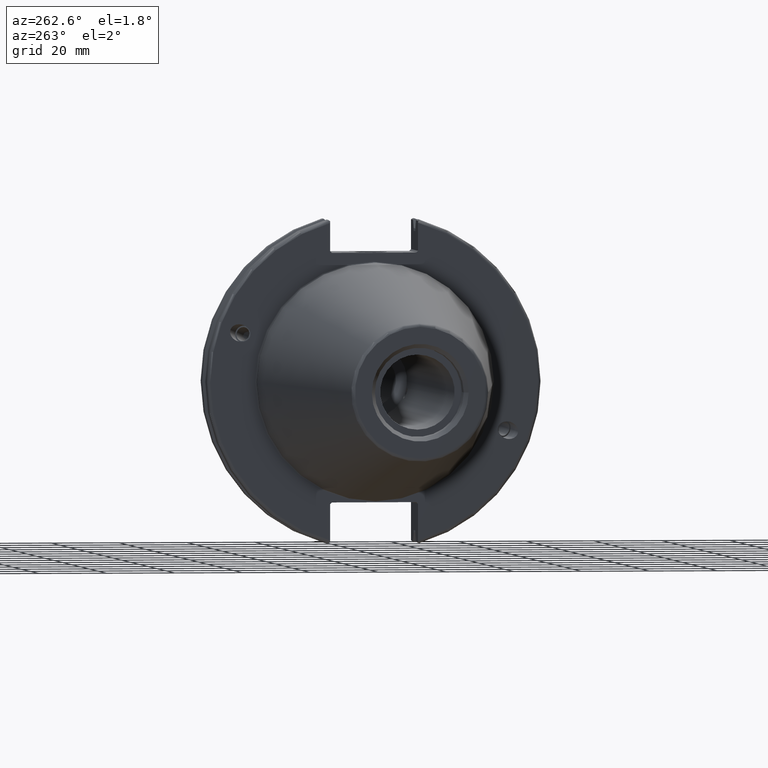
[diagram: clean part render]
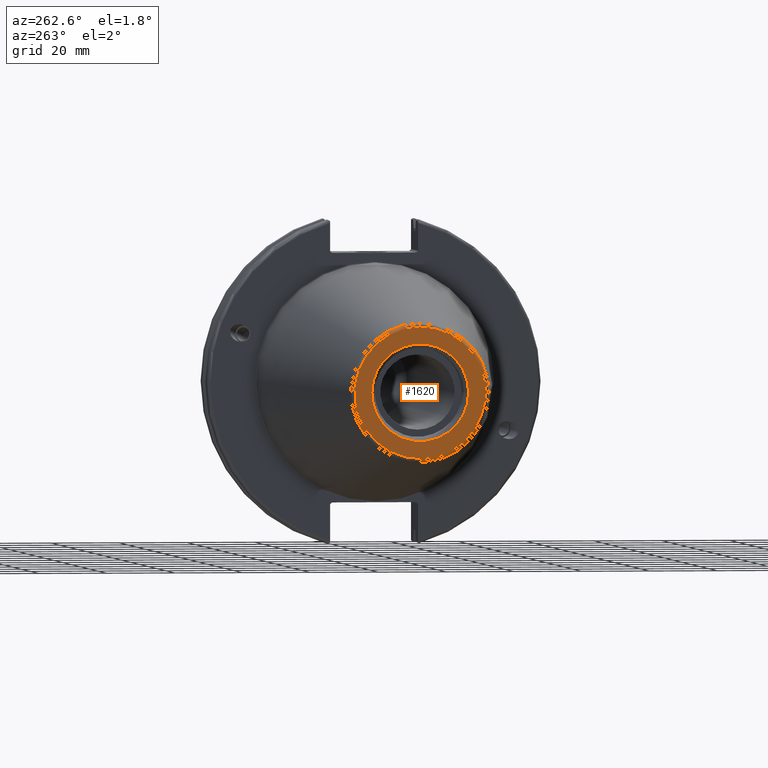
[diagram: same view with one face highlighted and labeled with its STEP entity id]
A machine part, auxiliary view. The second image highlights one B-rep face of the part: STEP entity #1620.
In plain terms, the highlighted planar face has unit normal (-1, 0, 0).
Its self-contained STEP definition (entity closure, byte-faithful):
#51=FACE_BOUND('',#359,.T.);
#98=PLANE('',#1799);
#178=CIRCLE('',#1798,19.2435889303637);
#179=CIRCLE('',#1800,14.2875);
#250=FACE_OUTER_BOUND('',#358,.T.);
#358=EDGE_LOOP('',(#1402));
#359=EDGE_LOOP('',(#1403));
#793=VERTEX_POINT('',#3328);
#794=VERTEX_POINT('',#3332);
#1014=EDGE_CURVE('',#793,#793,#178,.T.);
#1015=EDGE_CURVE('',#794,#794,#179,.T.);
#1402=ORIENTED_EDGE('',*,*,#1014,.F.);
#1403=ORIENTED_EDGE('',*,*,#1015,.T.);
#1620=ADVANCED_FACE('',(#250,#51),#98,.T.);
#1798=AXIS2_PLACEMENT_3D('',#3330,#2173,#2174);
#1799=AXIS2_PLACEMENT_3D('',#3331,#2175,#2176);
#1800=AXIS2_PLACEMENT_3D('',#3333,#2177,#2178);
#2173=DIRECTION('center_axis',(1.,0.,0.));
#2174=DIRECTION('ref_axis',(0.,-1.,1.83697019872103E-16));
#2175=DIRECTION('center_axis',(-1.,0.,0.));
#2176=DIRECTION('ref_axis',(0.,0.,1.));
#2177=DIRECTION('center_axis',(1.,0.,0.));
#2178=DIRECTION('ref_axis',(0.,0.,-1.));
#3328=CARTESIAN_POINT('',(-101.6,-2.35665995876774E-15,19.2435889303637));
#3330=CARTESIAN_POINT('Origin',(-101.6,0.,0.));
#3331=CARTESIAN_POINT('Origin',(-101.6,20.1083333333333,0.));
#3332=CARTESIAN_POINT('',(-101.6,-14.2875,-1.74971411428178E-15));
#3333=CARTESIAN_POINT('Origin',(-101.6,0.,0.));